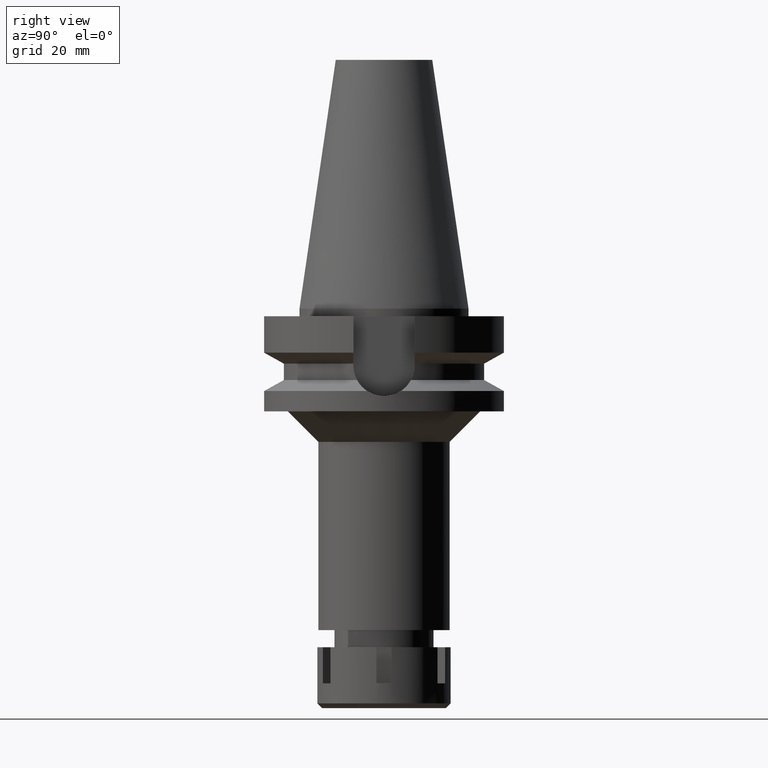
[diagram: clean part render]
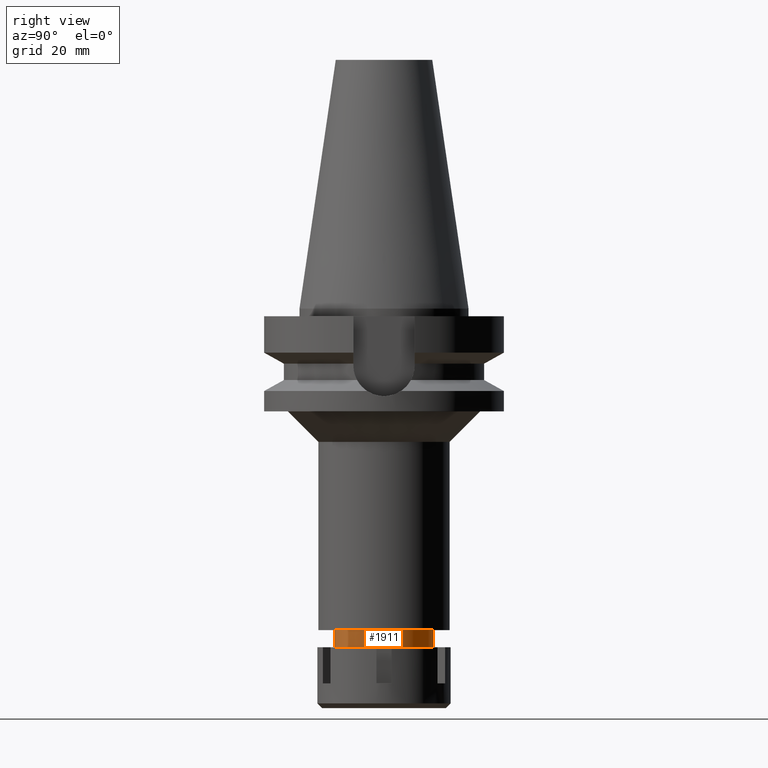
[diagram: same view with one face highlighted and labeled with its STEP entity id]
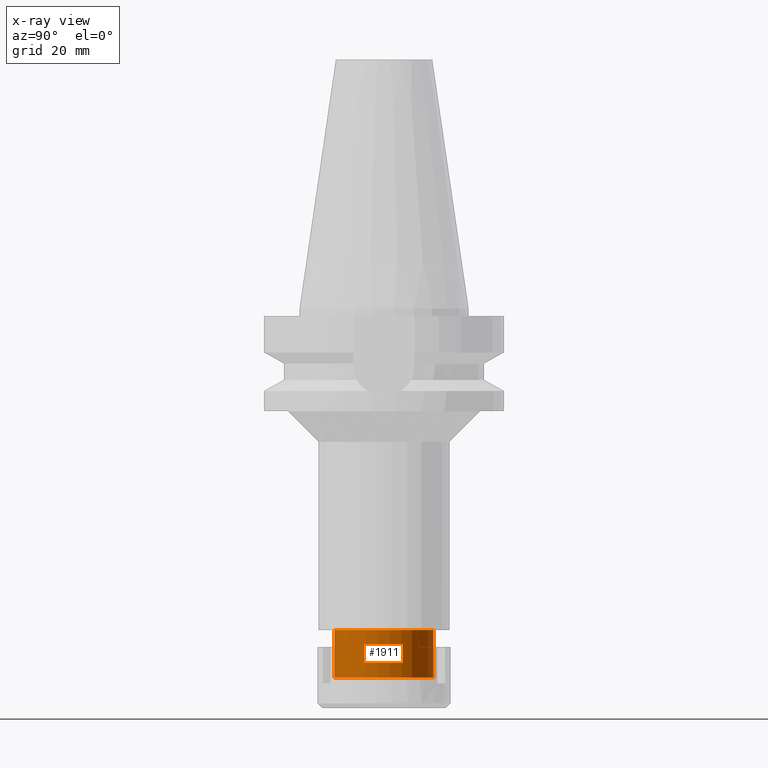
[diagram: x-ray of the same camera — body ghosted, the highlighted face saturated]
A machine part, right view. The second image highlights one B-rep face of the part: STEP entity #1911.
The next image is the same camera in x-ray: the body ghosted, the highlighted face saturated — about 0% of this face is hidden behind the body in this view.
In plain terms, the highlighted cylindrical surface (partial cylindrical patch) has radius 13 mm, axis along (0, 0, -1).
Its self-contained STEP definition (entity closure, byte-faithful):
#90 = VERTEX_POINT ( 'NONE', #1223 ) ;
#172 = LINE ( 'NONE', #697, #2357 ) ;
#173 = ORIENTED_EDGE ( 'NONE', *, *, #1983, .T. ) ;
#194 = EDGE_CURVE ( 'NONE', #90, #2934, #1442, .T. ) ;
#347 = VERTEX_POINT ( 'NONE', #1885 ) ;
#458 = CIRCLE ( 'NONE', #2831, 13.00000000000000000 ) ;
#619 = CARTESIAN_POINT ( 'NONE',  ( 0.0000000000000000000, 2.125007125879999817E-14, -84.50000000000000000 ) ) ;
#697 = CARTESIAN_POINT ( 'NONE',  ( 0.0000000000000000000, 13.00000000000000000, -84.50000000000000000 ) ) ;
#771 = DIRECTION ( 'NONE',  ( 0.0000000000000000000, 0.0000000000000000000, -1.000000000000000000 ) ) ;
#882 = AXIS2_PLACEMENT_3D ( 'NONE', #3041, #2760, #1662 ) ;
#951 = ORIENTED_EDGE ( 'NONE', *, *, #2680, .F. ) ;
#1223 = CARTESIAN_POINT ( 'NONE',  ( 0.0000000000000000000, -13.00000000000000000, -84.50000000000000000 ) ) ;
#1402 = FACE_OUTER_BOUND ( 'NONE', #2032, .T. ) ;
#1442 = LINE ( 'NONE', #1663, #2997 ) ;
#1662 = DIRECTION ( 'NONE',  ( 0.0000000000000000000, -1.000000000000000000, 0.0000000000000000000 ) ) ;
#1663 = CARTESIAN_POINT ( 'NONE',  ( 0.0000000000000000000, -13.00000000000000000, -84.50000000000000000 ) ) ;
#1766 = ORIENTED_EDGE ( 'NONE', *, *, #194, .T. ) ;
#1885 = CARTESIAN_POINT ( 'NONE',  ( 0.0000000000000000000, 13.00000000000000000, -84.50000000000000000 ) ) ;
#1911 = ADVANCED_FACE ( 'NONE', ( #1402 ), #3157, .T. ) ;
#1946 = CIRCLE ( 'NONE', #882, 13.00000000000000000 ) ;
#1983 = EDGE_CURVE ( 'NONE', #347, #90, #458, .T. ) ;
#2032 = EDGE_LOOP ( 'NONE', ( #173, #1766, #2910, #951 ) ) ;
#2114 = AXIS2_PLACEMENT_3D ( 'NONE', #2814, #2597, #3113 ) ;
#2256 = DIRECTION ( 'NONE',  ( 0.0000000000000000000, 0.0000000000000000000, -1.000000000000000000 ) ) ;
#2357 = VECTOR ( 'NONE', #771, 1000.000000000000000 ) ;
#2597 = DIRECTION ( 'NONE',  ( 0.0000000000000000000, 0.0000000000000000000, -1.000000000000000000 ) ) ;
#2616 = CARTESIAN_POINT ( 'NONE',  ( 0.0000000000000000000, -13.00000000000000000, -97.00000000000000000 ) ) ;
#2680 = EDGE_CURVE ( 'NONE', #347, #3459, #172, .T. ) ;
#2760 = DIRECTION ( 'NONE',  ( 0.0000000000000000000, 0.0000000000000000000, 1.000000000000000000 ) ) ;
#2805 = DIRECTION ( 'NONE',  ( 0.0000000000000000000, 0.0000000000000000000, -1.000000000000000000 ) ) ;
#2814 = CARTESIAN_POINT ( 'NONE',  ( 0.0000000000000000000, 2.125007125879999817E-14, 73.51999999999999602 ) ) ;
#2823 = EDGE_CURVE ( 'NONE', #2934, #3459, #1946, .T. ) ;
#2831 = AXIS2_PLACEMENT_3D ( 'NONE', #619, #2256, #2874 ) ;
#2874 = DIRECTION ( 'NONE',  ( 0.0000000000000000000, 1.000000000000000000, 0.0000000000000000000 ) ) ;
#2910 = ORIENTED_EDGE ( 'NONE', *, *, #2823, .T. ) ;
#2934 = VERTEX_POINT ( 'NONE', #2616 ) ;
#2997 = VECTOR ( 'NONE', #2805, 1000.000000000000000 ) ;
#3041 = CARTESIAN_POINT ( 'NONE',  ( 0.0000000000000000000, 2.125007125879999817E-14, -97.00000000000000000 ) ) ;
#3113 = DIRECTION ( 'NONE',  ( 0.0000000000000000000, -1.000000000000000000, 0.0000000000000000000 ) ) ;
#3157 = CYLINDRICAL_SURFACE ( 'NONE', #2114, 13.00000000000000000 ) ;
#3258 = CARTESIAN_POINT ( 'NONE',  ( 0.0000000000000000000, 13.00000000000000000, -97.00000000000000000 ) ) ;
#3459 = VERTEX_POINT ( 'NONE', #3258 ) ;